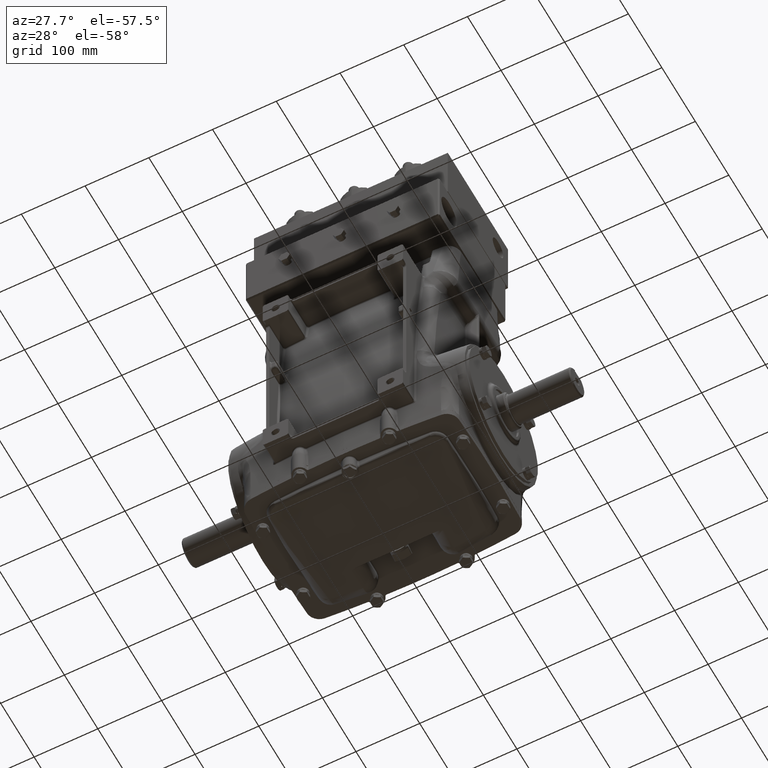
[diagram: clean part render]
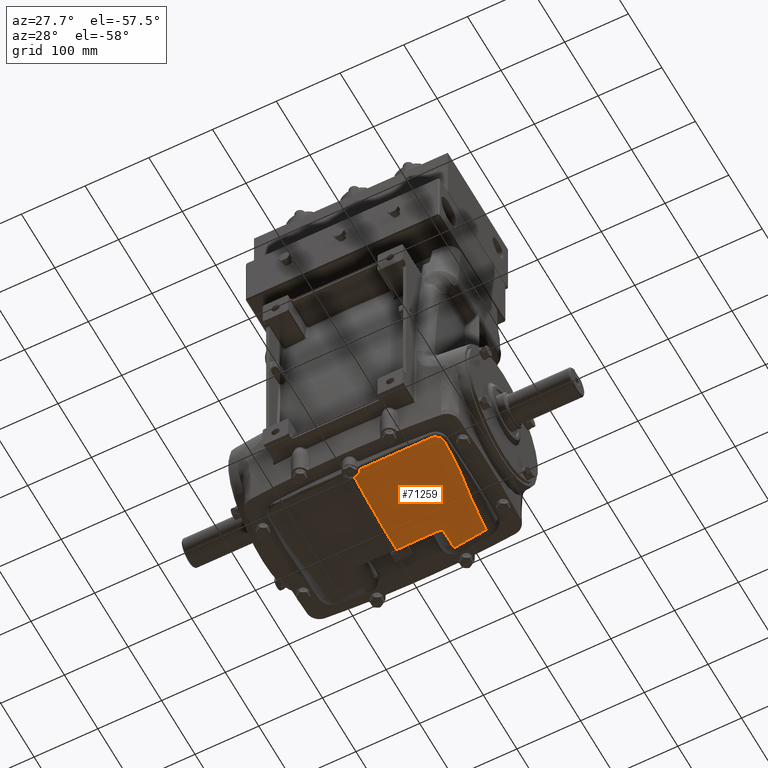
[diagram: same view with one face highlighted and labeled with its STEP entity id]
A machine part, auxiliary view. The second image highlights one B-rep face of the part: STEP entity #71259.
In plain terms, the highlighted toroidal blend (fillet) surface has major radius 300 mm and minor (blend) radius 700 mm.
Its self-contained STEP definition (entity closure, byte-faithful):
#452 = CARTESIAN_POINT ( 'NONE',  ( 0.2297784026382459488, -3.413870119763415811, -5.637982275400688970 ) ) ;
#1107 = B_SPLINE_CURVE_WITH_KNOTS ( 'NONE', 3,
 ( #15661, #8245, #58238, #64846, #1628, #71032 ),
 .UNSPECIFIED., .F., .F.,
 ( 4, 2, 4 ),
 ( 0.01236748594910173221, 0.06737170396115280124, 0.1223759219732038495 ),
 .UNSPECIFIED. ) ;
#1158 = CARTESIAN_POINT ( 'NONE',  ( 0.2297784026382459488, -3.413870119763415811, -5.637982275400688970 ) ) ;
#1628 = CARTESIAN_POINT ( 'NONE',  ( 4.090517692144738149, -3.545441420707249325, -5.403650496663405356 ) ) ;
#1909 = CARTESIAN_POINT ( 'NONE',  ( 5.081512726748598219, -3.407563633568248207, -5.306289430408320129 ) ) ;
#1984 = DIRECTION ( 'NONE',  ( -1.000000000000000000, -0.000000000000000000, -0.000000000000000000 ) ) ;
#2299 = EDGE_CURVE ( 'NONE', #59768, #55313, #37558, .T. ) ;
#2403 = CARTESIAN_POINT ( 'NONE',  ( 0.000000000000000000, 1.824751546699278082, 21.41791557091272225 ) ) ;
#2478 = EDGE_CURVE ( 'NONE', #71469, #7449, #22781, .T. ) ;
#2608 = CARTESIAN_POINT ( 'NONE',  ( 1.623828398297766595, 1.590368489560495702, -6.115024639625040059 ) ) ;
#3724 = EDGE_LOOP ( 'NONE', ( #55287, #76015, #81267, #31073, #66996, #7772, #48749, #14281, #30101, #11903 ) ) ;
#4087 = DIRECTION ( 'NONE',  ( 0.000000000000000000, -1.000000000000000000, 0.000000000000000000 ) ) ;
#4877 = CARTESIAN_POINT ( 'NONE',  ( 2.689720252346790463, 1.655027810071075800, -6.048643191705019184 ) ) ;
#5240 = AXIS2_PLACEMENT_3D ( 'NONE', #60688, #4087, #43701 ) ;
#5435 = CARTESIAN_POINT ( 'NONE',  ( 0.1562833098085748829, -3.384908027298649369, -5.643959498002079300 ) ) ;
#5797 = B_SPLINE_CURVE_WITH_KNOTS ( 'NONE', 3,
 ( #68308, #36876, #30690, #55883, #81095, #24501, #49701, #18309, #68688, #64537, #19919, #13721 ),
 .UNSPECIFIED., .F., .F.,
 ( 4, 2, 2, 2, 2, 4 ),
 ( 1.734723475976807094E-18, 0.002335081971561272108, 0.004670163943122542481, 0.007005245914683813288, 0.008172786900464447390, 0.009340327886245083228 ),
 .UNSPECIFIED. ) ;
#7449 = VERTEX_POINT ( 'NONE', #42043 ) ;
#7721 = CARTESIAN_POINT ( 'NONE',  ( 4.807788219395104257, -3.496116492186950975, -5.323983456037651329 ) ) ;
#7772 = ORIENTED_EDGE ( 'NONE', *, *, #2478, .F. ) ;
#8245 = CARTESIAN_POINT ( 'NONE',  ( 1.210477209355809602, -3.654505220724530101, -5.578813219982557747 ) ) ;
#8527 = CARTESIAN_POINT ( 'NONE',  ( 5.319986711889992392, -3.119926642901834413, -5.328644194265905298 ) ) ;
#9071 = CARTESIAN_POINT ( 'NONE',  ( 2.812132526087493645, 3.010549370942952496, -6.014990193079878367 ) ) ;
#9338 = CARTESIAN_POINT ( 'NONE',  ( 5.353946565448759465, -2.998995579519901256, -5.345947324219060270 ) ) ;
#10047 = CARTESIAN_POINT ( 'NONE',  ( -3.346919348482985394E-33, 1.582229971301458704, -6.140072423287879388 ) ) ;
#10274 = CARTESIAN_POINT ( 'NONE',  ( 2.797004342591181025, 1.694917036608007521, -6.041353094498735032 ) ) ;
#10676 = CARTESIAN_POINT ( 'NONE',  ( 2.781809236411487252, 1.688860914153496928, -6.042403132590063564 ) ) ;
#11859 = TOROIDAL_SURFACE ( 'NONE', #5240, 11.81102362204724265, 27.55905511811023700 ) ;
#11903 = ORIENTED_EDGE ( 'NONE', *, *, #81478, .T. ) ;
#11965 = CARTESIAN_POINT ( 'NONE',  ( 2.812149532266563501, 2.137760349558801121, -6.042263470602809328 ) ) ;
#13195 = CARTESIAN_POINT ( 'NONE',  ( 4.807788219395104257, -3.496116492186950975, -5.323983456037651329 ) ) ;
#13721 = CARTESIAN_POINT ( 'NONE',  ( 0.2297784026382459488, -3.413870119763415811, -5.637982275400688970 ) ) ;
#14281 = ORIENTED_EDGE ( 'NONE', *, *, #70038, .F. ) ;
#15128 = CARTESIAN_POINT ( 'NONE',  ( 5.281568287909769843, -3.201588821601273338, -5.318780719499171639 ) ) ;
#15453 = CARTESIAN_POINT ( 'NONE',  ( 2.434261824659145201, 1.606639635857287640, -6.064947200536434657 ) ) ;
#15538 = CARTESIAN_POINT ( 'NONE',  ( 5.218333242062025867, -3.289595542081743762, -5.310752198899931109 ) ) ;
#15661 = CARTESIAN_POINT ( 'NONE',  ( 0.4877294735864445840, -3.659535562739759218, -5.586873153588124197 ) ) ;
#17466 = CARTESIAN_POINT ( 'NONE',  ( 5.032817424147098428, 0.9545078366542655290, -5.821849382911058690 ) ) ;
#18174 = CARTESIAN_POINT ( 'NONE',  ( 2.812132526087493645, 3.010549370942952496, -6.014990193079878367 ) ) ;
#18309 = CARTESIAN_POINT ( 'NONE',  ( 0.2963987745866182855, -3.450012349667860967, -5.630511765672602031 ) ) ;
#18596 = CARTESIAN_POINT ( 'NONE',  ( 4.166371834084402259, 2.946303581037741814, -5.903031597596715585 ) ) ;
#19079 = CARTESIAN_POINT ( 'NONE',  ( 4.840242302779922845, 2.899656050760234027, -5.821340785861177203 ) ) ;
#19476 = CARTESIAN_POINT ( 'NONE',  ( 0.07845892614821234345, -3.369221067610173037, -5.647193954812964378 ) ) ;
#19919 = CARTESIAN_POINT ( 'NONE',  ( 0.2435141439681423325, -3.420184421071718273, -5.636678491302456351 ) ) ;
#20070 = B_SPLINE_CURVE_WITH_KNOTS ( 'NONE', 3,
 ( #7721, #64317, #71313, #22134, #20515, #59729, #26713, #47342, #71728, #1909, #77095, #27127, #72142, #52718, #15538, #72536, #27537, #15128, #40315, #8527, #77906, #34526, #52326, #9338, #65124, #33303 ),
 .UNSPECIFIED., .F., .F.,
 ( 4, 2, 2, 2, 2, 2, 2, 2, 2, 2, 2, 2, 4 ),
 ( 0.000000000000000000, 0.001393468656929867412, 0.002786937313859734824, 0.005573874627719434954, 0.006967343284649294560, 0.008360811941579152431, 0.01114774925543880399, 0.01254121791236861329, 0.01393468656929842779, 0.01672162388315804812, 0.01811509254008786610, 0.01950856119701768060, 0.02229549851087730961 ),
 .UNSPECIFIED. ) ;
#20334 = VERTEX_POINT ( 'NONE', #1158 ) ;
#20515 = CARTESIAN_POINT ( 'NONE',  ( 4.897888106521786078, -3.483187433946809186, -5.315206216569228204 ) ) ;
#22134 = CARTESIAN_POINT ( 'NONE',  ( 4.879996799677580377, -3.486948360581074713, -5.316731123404999870 ) ) ;
#22631 = CARTESIAN_POINT ( 'NONE',  ( 2.658464246173371848, 1.645070282001908746, -6.050707505818283316 ) ) ;
#22781 = B_SPLINE_CURVE_WITH_KNOTS ( 'NONE', 3,
 ( #55446, #36454, #61664, #17466, #55855, #19079 ),
 .UNSPECIFIED., .F., .F.,
 ( 4, 2, 4 ),
 ( 0.000000000000000000, 0.5000000000000000000, 1.000000000000000000 ),
 .UNSPECIFIED. ) ;
#23483 = B_SPLINE_CURVE_WITH_KNOTS ( 'NONE', 3,
 ( #55271, #29246, #66866, #74263, #68082, #22631, #4877, #68484, #42052, #54437, #10676, #10274, #79655, #35857 ),
 .UNSPECIFIED., .F., .F.,
 ( 4, 2, 2, 2, 2, 2, 4 ),
 ( 2.276126435504334081E-16, 0.002480966685143793076, 0.004961933370287358036, 0.007442900055430923430, 0.008683383398002690948, 0.009303625069288570804, 0.009923866740574450659 ),
 .UNSPECIFIED. ) ;
#24501 = CARTESIAN_POINT ( 'NONE',  ( 0.3576885386915084619, -3.494681751219408383, -5.621257479502166809 ) ) ;
#25660 = CARTESIAN_POINT ( 'NONE',  ( 0.09811938222524238529, -3.372360663527925961, -5.646546757518499327 ) ) ;
#26713 = CARTESIAN_POINT ( 'NONE',  ( 4.984472006344477180, -3.457394581205895268, -5.309210827171242819 ) ) ;
#27127 = CARTESIAN_POINT ( 'NONE',  ( 5.140980375108047618, -3.366126144661426345, -5.306466500724023483 ) ) ;
#27537 = CARTESIAN_POINT ( 'NONE',  ( 5.251736528445274388, -3.246633039124112940, -5.314367873378915696 ) ) ;
#29246 = CARTESIAN_POINT ( 'NONE',  ( 2.467158401820672697, 1.607300103456730689, -6.062914490278744850 ) ) ;
#30101 = ORIENTED_EDGE ( 'NONE', *, *, #79258, .T. ) ;
#30637 = CARTESIAN_POINT ( 'NONE',  ( 0.01964966533313926636, -3.364041038235045633, -5.648261671423675523 ) ) ;
#30690 = CARTESIAN_POINT ( 'NONE',  ( 0.4577033197737750414, -3.607162025404837102, -5.597837415561794039 ) ) ;
#31073 = ORIENTED_EDGE ( 'NONE', *, *, #57816, .F. ) ;
#32249 = CARTESIAN_POINT ( 'NONE',  ( 3.842746221509609454E-15, -3.364041038235044301, -5.648261671423673747 ) ) ;
#33303 = CARTESIAN_POINT ( 'NONE',  ( 5.360178882565543645, -2.927451683223999623, -5.357800683653446860 ) ) ;
#34526 = CARTESIAN_POINT ( 'NONE',  ( 5.337421209621137308, -3.068590556601563879, -5.335636005610887800 ) ) ;
#35857 = CARTESIAN_POINT ( 'NONE',  ( 2.812148308104204020, 1.701088795419486877, -6.040299091886770277 ) ) ;
#36454 = CARTESIAN_POINT ( 'NONE',  ( 5.400448329765261235, -1.959226436991761799, -5.523331220873142655 ) ) ;
#36876 = CARTESIAN_POINT ( 'NONE',  ( 0.4737789579380618510, -3.632699680336208825, -5.592498241481408172 ) ) ;
#37558 = B_SPLINE_CURVE_WITH_KNOTS ( 'NONE', 3,
 ( #60847, #2608, #60022, #10047 ),
 .UNSPECIFIED., .F., .F.,
 ( 4, 4 ),
 ( -0.06188400432762436454, 1.999312279274412241E-07 ),
 .UNSPECIFIED. ) ;
#37587 = CARTESIAN_POINT ( 'NONE',  ( 2.812132526087493645, 3.010549370942952496, -6.014990193079878367 ) ) ;
#39793 = VERTEX_POINT ( 'NONE', #13195 ) ;
#40315 = CARTESIAN_POINT ( 'NONE',  ( 5.298649251694552476, -3.169923180994641765, -5.322347823598065020 ) ) ;
#41680 = FACE_OUTER_BOUND ( 'NONE', #3724, .T. ) ;
#42043 = CARTESIAN_POINT ( 'NONE',  ( 4.840242302779922845, 2.899656050760234027, -5.821340785861177203 ) ) ;
#42052 = CARTESIAN_POINT ( 'NONE',  ( 2.751305435580421399, 1.677057974726242850, -6.044493808033123194 ) ) ;
#42772 = CARTESIAN_POINT ( 'NONE',  ( 2.812148308104204020, 1.701088795419486877, -6.040299091886770277 ) ) ;
#43341 = CARTESIAN_POINT ( 'NONE',  ( 2.812148308104204020, 1.701088795419486877, -6.040299091886770277 ) ) ;
#43701 = DIRECTION ( 'NONE',  ( 0.000000000000000000, 0.000000000000000000, -1.000000000000000000 ) ) ;
#43778 = CARTESIAN_POINT ( 'NONE',  ( 3.490336519798898696, 2.983315668818144140, -5.967567498589518848 ) ) ;
#46165 = AXIS2_PLACEMENT_3D ( 'NONE', #2403, #1984, #46191 ) ;
#46191 = DIRECTION ( 'NONE',  ( 0.000000000000000000, 0.000000000000000000, 1.000000000000000000 ) ) ;
#47342 = CARTESIAN_POINT ( 'NONE',  ( 5.033724942537766367, -3.434453761081072365, -5.307302620882437871 ) ) ;
#48749 = ORIENTED_EDGE ( 'NONE', *, *, #56110, .F. ) ;
#49701 = CARTESIAN_POINT ( 'NONE',  ( 0.3342401366933785978, -3.475711029905725447, -5.625190889438562714 ) ) ;
#50686 = CARTESIAN_POINT ( 'NONE',  ( 0.4877294735864445840, -3.659535562739759218, -5.586873153588124197 ) ) ;
#50858 = CARTESIAN_POINT ( 'NONE',  ( 0.1937249615059463137, -3.397296402696205142, -5.641404435304998799 ) ) ;
#52326 = CARTESIAN_POINT ( 'NONE',  ( 5.342144275654240992, -3.051303830555013974, -5.338125044618379000 ) ) ;
#52718 = CARTESIAN_POINT ( 'NONE',  ( 5.206194522468571506, -3.303374770522423454, -5.309764036319435832 ) ) ;
#52760 = CIRCLE ( 'NONE', #46165, 27.55905511811023700 ) ;
#53563 = EDGE_CURVE ( 'NONE', #59768, #63435, #23483, .T. ) ;
#54437 = CARTESIAN_POINT ( 'NONE',  ( 2.774196398429848998, 1.685874443783022647, -6.042926722567060871 ) ) ;
#55271 = CARTESIAN_POINT ( 'NONE',  ( 2.434261824659145201, 1.606639635857287640, -6.064947200536434657 ) ) ;
#55287 = ORIENTED_EDGE ( 'NONE', *, *, #73571, .F. ) ;
#55313 = VERTEX_POINT ( 'NONE', #65527 ) ;
#55446 = CARTESIAN_POINT ( 'NONE',  ( 5.360178882565543645, -2.927451683223999623, -5.357800683653446860 ) ) ;
#55855 = CARTESIAN_POINT ( 'NONE',  ( 4.880541632516624873, 1.924048125077437943, -5.854718412481648926 ) ) ;
#55883 = CARTESIAN_POINT ( 'NONE',  ( 0.4212764955910056619, -3.558700208755347205, -5.607948092893978220 ) ) ;
#56056 = VERTEX_POINT ( 'NONE', #50686 ) ;
#56110 = EDGE_CURVE ( 'NONE', #39793, #71469, #20070, .T. ) ;
#57816 = EDGE_CURVE ( 'NONE', #61043, #63435, #60405, .T. ) ;
#58238 = CARTESIAN_POINT ( 'NONE',  ( 1.931853258259351724, -3.638305189545421481, -5.552868048543251334 ) ) ;
#59364 = VERTEX_POINT ( 'NONE', #77096 ) ;
#59729 = CARTESIAN_POINT ( 'NONE',  ( 4.950513585213516699, -3.469580393225757842, -5.311184794286596400 ) ) ;
#59768 = VERTEX_POINT ( 'NONE', #15453 ) ;
#60022 = CARTESIAN_POINT ( 'NONE',  ( 0.8124080174919480202, 1.582229971301457594, -6.140072423287882941 ) ) ;
#60405 = B_SPLINE_CURVE_WITH_KNOTS ( 'NONE', 3,
 ( #18174, #67745, #11965, #43341 ),
 .UNSPECIFIED., .F., .F.,
 ( 4, 4 ),
 ( 0.000000000000000000, 0.03326646946209799866 ),
 .UNSPECIFIED. ) ;
#60688 = CARTESIAN_POINT ( 'NONE',  ( 0.000000000000000000, 1.824751546699278082, 33.22893919295996312 ) ) ;
#60847 = CARTESIAN_POINT ( 'NONE',  ( 2.434261824659145201, 1.606639635857287640, -6.064947200536434657 ) ) ;
#61043 = VERTEX_POINT ( 'NONE', #9071 ) ;
#61664 = CARTESIAN_POINT ( 'NONE',  ( 5.293015298459751605, -0.9872227947267740999, -5.656229700013359007 ) ) ;
#63435 = VERTEX_POINT ( 'NONE', #42772 ) ;
#63663 = CARTESIAN_POINT ( 'NONE',  ( 0.03927151281586335058, -3.365072260868046339, -5.648049143069698630 ) ) ;
#64317 = CARTESIAN_POINT ( 'NONE',  ( 4.825956977166343087, -3.494867071439379025, -5.321965457097936003 ) ) ;
#64537 = CARTESIAN_POINT ( 'NONE',  ( 0.2569883187545530245, -3.427063445841094236, -5.635257350601357906 ) ) ;
#64846 = CARTESIAN_POINT ( 'NONE',  ( 3.371873501537797857, -3.583773380137238895, -5.465286664663715044 ) ) ;
#65124 = CARTESIAN_POINT ( 'NONE',  ( 5.358678364081207235, -2.963529652962363592, -5.351632691506574169 ) ) ;
#65527 = CARTESIAN_POINT ( 'NONE',  ( -3.346919348482985394E-33, 1.582229971301458704, -6.140072423287879388 ) ) ;
#66866 = CARTESIAN_POINT ( 'NONE',  ( 2.499581784844672860, 1.610598010072807451, -6.060890861939918217 ) ) ;
#66996 = ORIENTED_EDGE ( 'NONE', *, *, #79544, .F. ) ;
#67745 = CARTESIAN_POINT ( 'NONE',  ( 2.812144280299276655, 2.574247221612352643, -6.033827933789728704 ) ) ;
#68082 = CARTESIAN_POINT ( 'NONE',  ( 2.595493415602901255, 1.628048154302350836, -6.054802203786146642 ) ) ;
#68308 = CARTESIAN_POINT ( 'NONE',  ( 0.4877294735864445840, -3.659535562739759218, -5.586873153588124197 ) ) ;
#68484 = CARTESIAN_POINT ( 'NONE',  ( 2.735974893832352262, 1.671370829869121000, -6.045533616199472604 ) ) ;
#68688 = CARTESIAN_POINT ( 'NONE',  ( 0.2834083292045331826, -3.441962007930002621, -5.632177176608922586 ) ) ;
#70038 = EDGE_CURVE ( 'NONE', #56056, #39793, #1107, .T. ) ;
#70214 = CARTESIAN_POINT ( 'NONE',  ( 4.840242302779922845, 2.899656050760234027, -5.821340785861177203 ) ) ;
#71032 = CARTESIAN_POINT ( 'NONE',  ( 4.807788219395104257, -3.496116492186950975, -5.323983456037651329 ) ) ;
#71259 = ADVANCED_FACE ( 'NONE', ( #41680 ), #11859, .T. ) ;
#71313 = CARTESIAN_POINT ( 'NONE',  ( 4.844032478405734032, -3.492783821194469507, -5.320111385042866736 ) ) ;
#71469 = VERTEX_POINT ( 'NONE', #72182 ) ;
#71728 = CARTESIAN_POINT ( 'NONE',  ( 5.049886546279415356, -3.426009580275169331, -5.306842600727459391 ) ) ;
#72142 = CARTESIAN_POINT ( 'NONE',  ( 5.168341137774181249, -3.342557198949430042, -5.307357947498045903 ) ) ;
#72182 = CARTESIAN_POINT ( 'NONE',  ( 5.360178882565543645, -2.927451683223999623, -5.357800683653446860 ) ) ;
#72536 = CARTESIAN_POINT ( 'NONE',  ( 5.241086578144337871, -3.261236225363271846, -5.313054194956410292 ) ) ;
#73571 = EDGE_CURVE ( 'NONE', #55313, #59364, #52760, .T. ) ;
#74263 = CARTESIAN_POINT ( 'NONE',  ( 2.563751155393802605, 1.620961619166637169, -6.056834601465286738 ) ) ;
#74897 = B_SPLINE_CURVE_WITH_KNOTS ( 'NONE', 3,
 ( #70214, #18596, #43778, #37587 ),
 .UNSPECIFIED., .F., .F.,
 ( 4, 4 ),
 ( 0.000000000000000000, 0.05182488106915178472 ),
 .UNSPECIFIED. ) ;
#76015 = ORIENTED_EDGE ( 'NONE', *, *, #2299, .F. ) ;
#77095 = CARTESIAN_POINT ( 'NONE',  ( 5.096777293988907331, -3.397681871397706832, -5.306199164813016012 ) ) ;
#77096 = CARTESIAN_POINT ( 'NONE',  ( 3.842746221509609454E-15, -3.364041038235044301, -5.648261671423673747 ) ) ;
#77906 = CARTESIAN_POINT ( 'NONE',  ( 5.326361990746772967, -3.102858777173423732, -5.330900886658606730 ) ) ;
#79258 = EDGE_CURVE ( 'NONE', #56056, #20334, #5797, .T. ) ;
#79544 = EDGE_CURVE ( 'NONE', #7449, #61043, #74897, .T. ) ;
#79646 = B_SPLINE_CURVE_WITH_KNOTS ( 'NONE', 3,
 ( #452, #50858, #5435, #25660, #19476, #63663, #30637, #32249 ),
 .UNSPECIFIED., .F., .F.,
 ( 4, 2, 2, 4 ),
 ( 0.000000000000000000, 0.003011261225356658567, 0.004516891838034986333, 0.006022522450713315399 ),
 .UNSPECIFIED. ) ;
#79655 = CARTESIAN_POINT ( 'NONE',  ( 2.804632689135867718, 1.698007479565428968, -6.040823438318117411 ) ) ;
#81095 = CARTESIAN_POINT ( 'NONE',  ( 0.4011799817011136304, -3.536140021149514645, -5.612643640727642769 ) ) ;
#81267 = ORIENTED_EDGE ( 'NONE', *, *, #53563, .T. ) ;
#81478 = EDGE_CURVE ( 'NONE', #20334, #59364, #79646, .T. ) ;